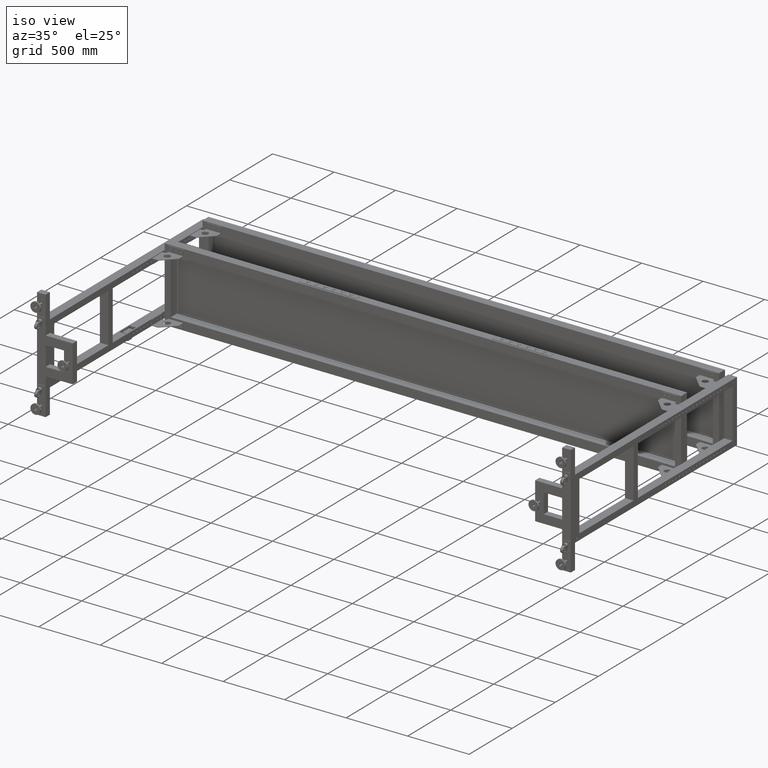
[diagram: clean part render]
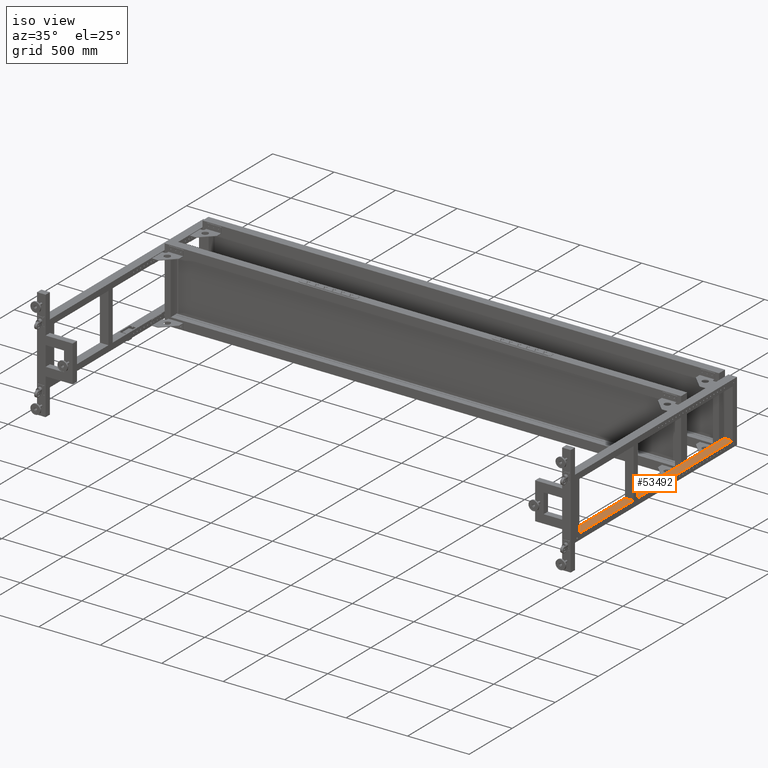
[diagram: same view with one face highlighted and labeled with its STEP entity id]
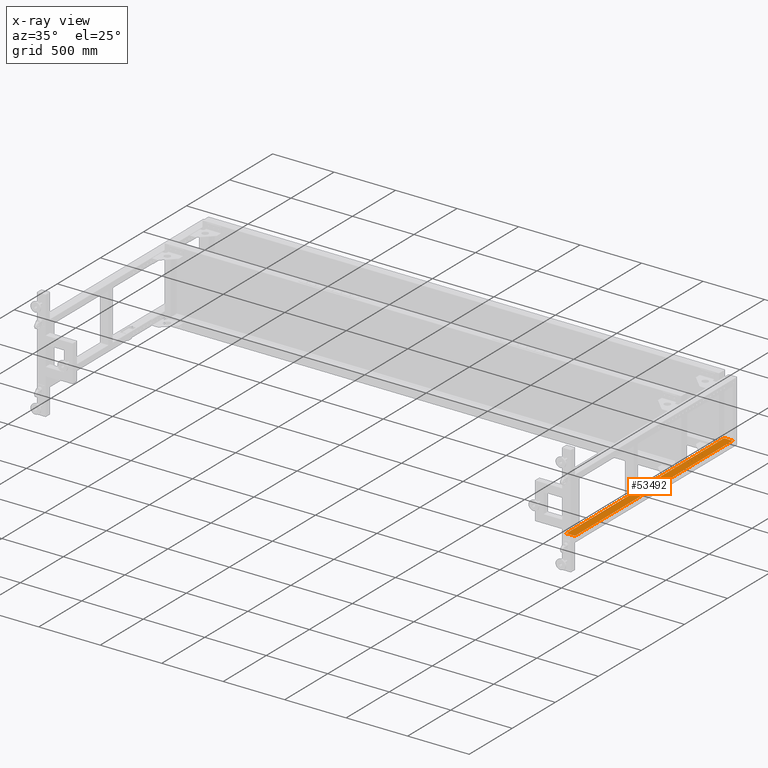
[diagram: x-ray of the same camera — body ghosted, the highlighted face saturated]
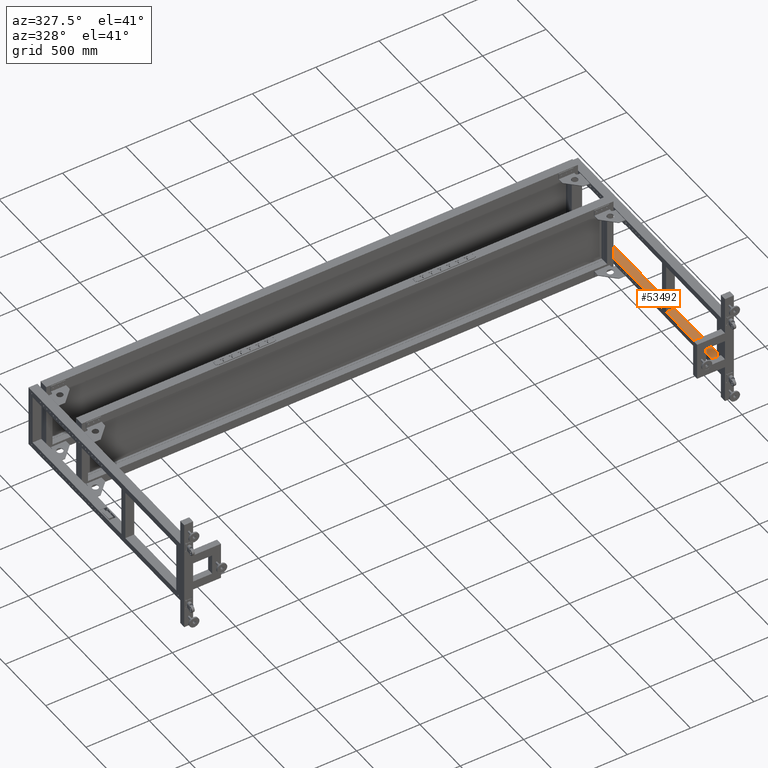
[diagram: same view with one face highlighted and labeled with its STEP entity id]
A machine part, iso view. The second image highlights one B-rep face of the part: STEP entity #53492.
The next image is the same camera in x-ray: the body ghosted, the highlighted face saturated — about 0% of this face is hidden behind the body in this view.
A second angle (auxiliary view) of the same face is appended — the face is thin or edge-on in the first view.
In plain terms, the highlighted planar face has unit normal (0, 0, 1).
Its self-contained STEP definition (entity closure, byte-faithful):
#473 = VERTEX_POINT ( 'NONE', #9385 ) ;
#502 = CARTESIAN_POINT ( 'NONE',  ( 2931.827512562818356, -844.5589195979883925, -200.0000000000000000 ) ) ;
#1352 = VERTEX_POINT ( 'NONE', #60219 ) ;
#1521 = EDGE_CURVE ( 'NONE', #1352, #473, #51569, .T. ) ;
#2388 = VERTEX_POINT ( 'NONE', #18633 ) ;
#2432 = VERTEX_POINT ( 'NONE', #14132 ) ;
#5196 = DIRECTION ( 'NONE',  ( 1.000000000000000000, 7.899874679788345329E-16, 0.000000000000000000 ) ) ;
#7481 = DIRECTION ( 'NONE',  ( -1.345098980291412606E-15, 1.000000000000000000, 0.000000000000000000 ) ) ;
#8460 = EDGE_CURVE ( 'NONE', #2388, #23613, #17987, .T. ) ;
#9385 = CARTESIAN_POINT ( 'NONE',  ( 2931.827512562816082, 986.4410804020143360, -200.0000000000000284 ) ) ;
#9450 = CARTESIAN_POINT ( 'NONE',  ( 2931.811469511924315, 926.9410804020136538, -200.0000000000000284 ) ) ;
#10663 = ORIENTED_EDGE ( 'NONE', *, *, #8460, .F. ) ;
#11427 = CARTESIAN_POINT ( 'NONE',  ( 3001.827512562815627, -844.5589195979882788, -200.0000000000000000 ) ) ;
#12960 = VECTOR ( 'NONE', #27925, 1000.000000000000000 ) ;
#13577 = VECTOR ( 'NONE', #19237, 1000.000000000000000 ) ;
#13919 = CARTESIAN_POINT ( 'NONE',  ( 2931.827512562816537, 926.9410804020135402, -200.0000000000000000 ) ) ;
#14132 = CARTESIAN_POINT ( 'NONE',  ( 2931.811469511924315, 919.4410804020143360, -200.0000000000000284 ) ) ;
#15407 = VECTOR ( 'NONE', #73015, 1000.000000000000000 ) ;
#15588 = VECTOR ( 'NONE', #45214, 1000.000000000000000 ) ;
#16759 = VECTOR ( 'NONE', #46894, 1000.000000000000000 ) ;
#17987 = LINE ( 'NONE', #37618, #37222 ) ;
#18633 = CARTESIAN_POINT ( 'NONE',  ( 2931.827512562815627, -844.5589195979882788, -200.0000000000000000 ) ) ;
#18878 = VERTEX_POINT ( 'NONE', #9450 ) ;
#19237 = DIRECTION ( 'NONE',  ( -1.000000000000000000, -1.930768458668234268E-15, 0.000000000000000000 ) ) ;
#20157 = DIRECTION ( 'NONE',  ( 0.000000000000000000, 0.000000000000000000, 1.000000000000000000 ) ) ;
#20470 = CARTESIAN_POINT ( 'NONE',  ( 3001.827512562814718, 986.4410804020143360, -200.0000000000000284 ) ) ;
#21584 = EDGE_CURVE ( 'NONE', #74077, #473, #56164, .T. ) ;
#23613 = VERTEX_POINT ( 'NONE', #48487 ) ;
#23758 = CARTESIAN_POINT ( 'NONE',  ( 3001.827512562815627, -844.5589195979882788, -200.0000000000000000 ) ) ;
#24673 = ORIENTED_EDGE ( 'NONE', *, *, #29051, .F. ) ;
#26174 = EDGE_LOOP ( 'NONE', ( #64547, #75642, #10663, #57337, #74014, #43685, #47167, #24673 ) ) ;
#27925 = DIRECTION ( 'NONE',  ( -1.000000000000000000, -3.450989802914125775E-16, 0.000000000000000000 ) ) ;
#28864 = LINE ( 'NONE', #34604, #16759 ) ;
#29051 = EDGE_CURVE ( 'NONE', #18878, #74077, #55911, .T. ) ;
#30942 = EDGE_CURVE ( 'NONE', #18878, #2432, #28864, .T. ) ;
#31471 = DIRECTION ( 'NONE',  ( -3.450989802914125775E-16, 1.000000000000000000, 0.000000000000000000 ) ) ;
#31665 = VECTOR ( 'NONE', #5196, 1000.000000000000000 ) ;
#32532 = CARTESIAN_POINT ( 'NONE',  ( 3001.827512562814718, 919.4410804020144496, -200.0000000000000284 ) ) ;
#34604 = CARTESIAN_POINT ( 'NONE',  ( 2931.811469511923860, 986.4410804020143360, -200.0000000000000284 ) ) ;
#35290 = AXIS2_PLACEMENT_3D ( 'NONE', #63121, #20157, #44711 ) ;
#37222 = VECTOR ( 'NONE', #31471, 1000.000000000000000 ) ;
#37618 = CARTESIAN_POINT ( 'NONE',  ( 2931.827512562815627, -844.5589195979882788, -200.0000000000000000 ) ) ;
#37855 = LINE ( 'NONE', #32532, #15588 ) ;
#41316 = VECTOR ( 'NONE', #7481, 1000.000000000000000 ) ;
#41509 = LINE ( 'NONE', #75294, #15407 ) ;
#43685 = ORIENTED_EDGE ( 'NONE', *, *, #1521, .T. ) ;
#44681 = EDGE_CURVE ( 'NONE', #23613, #2432, #37855, .T. ) ;
#44711 = DIRECTION ( 'NONE',  ( 3.450989802914125775E-16, -1.000000000000000000, 0.000000000000000000 ) ) ;
#44938 = EDGE_CURVE ( 'NONE', #48982, #1352, #41509, .T. ) ;
#45214 = DIRECTION ( 'NONE',  ( -1.000000000000000000, -1.930768458668234268E-15, 0.000000000000000000 ) ) ;
#46894 = DIRECTION ( 'NONE',  ( 1.345098980291412409E-15, -1.000000000000000000, -0.000000000000000000 ) ) ;
#47167 = ORIENTED_EDGE ( 'NONE', *, *, #21584, .F. ) ;
#48487 = CARTESIAN_POINT ( 'NONE',  ( 2931.827512562815173, 919.4410804020118348, -200.0000000000000000 ) ) ;
#48982 = VERTEX_POINT ( 'NONE', #23758 ) ;
#51569 = LINE ( 'NONE', #20470, #13577 ) ;
#52623 = EDGE_CURVE ( 'NONE', #48982, #2388, #78255, .T. ) ;
#53492 = ADVANCED_FACE ( 'NONE', ( #75805 ), #68871, .T. ) ;
#55911 = LINE ( 'NONE', #73140, #31665 ) ;
#56164 = LINE ( 'NONE', #502, #41316 ) ;
#57337 = ORIENTED_EDGE ( 'NONE', *, *, #52623, .F. ) ;
#60219 = CARTESIAN_POINT ( 'NONE',  ( 3001.827512562814718, 986.4410804020143360, -200.0000000000000284 ) ) ;
#63121 = CARTESIAN_POINT ( 'NONE',  ( 3001.827512562815627, -844.5589195979882788, -200.0000000000000000 ) ) ;
#64547 = ORIENTED_EDGE ( 'NONE', *, *, #30942, .T. ) ;
#68871 = PLANE ( 'NONE',  #35290 ) ;
#73015 = DIRECTION ( 'NONE',  ( -3.450989802914125775E-16, 1.000000000000000000, 0.000000000000000000 ) ) ;
#73140 = CARTESIAN_POINT ( 'NONE',  ( 3001.827512562813808, 926.9410804020136538, -200.0000000000000000 ) ) ;
#74014 = ORIENTED_EDGE ( 'NONE', *, *, #44938, .T. ) ;
#74077 = VERTEX_POINT ( 'NONE', #13919 ) ;
#75294 = CARTESIAN_POINT ( 'NONE',  ( 3001.827512562815627, -844.5589195979882788, -200.0000000000000000 ) ) ;
#75642 = ORIENTED_EDGE ( 'NONE', *, *, #44681, .F. ) ;
#75805 = FACE_OUTER_BOUND ( 'NONE', #26174, .T. ) ;
#78255 = LINE ( 'NONE', #11427, #12960 ) ;